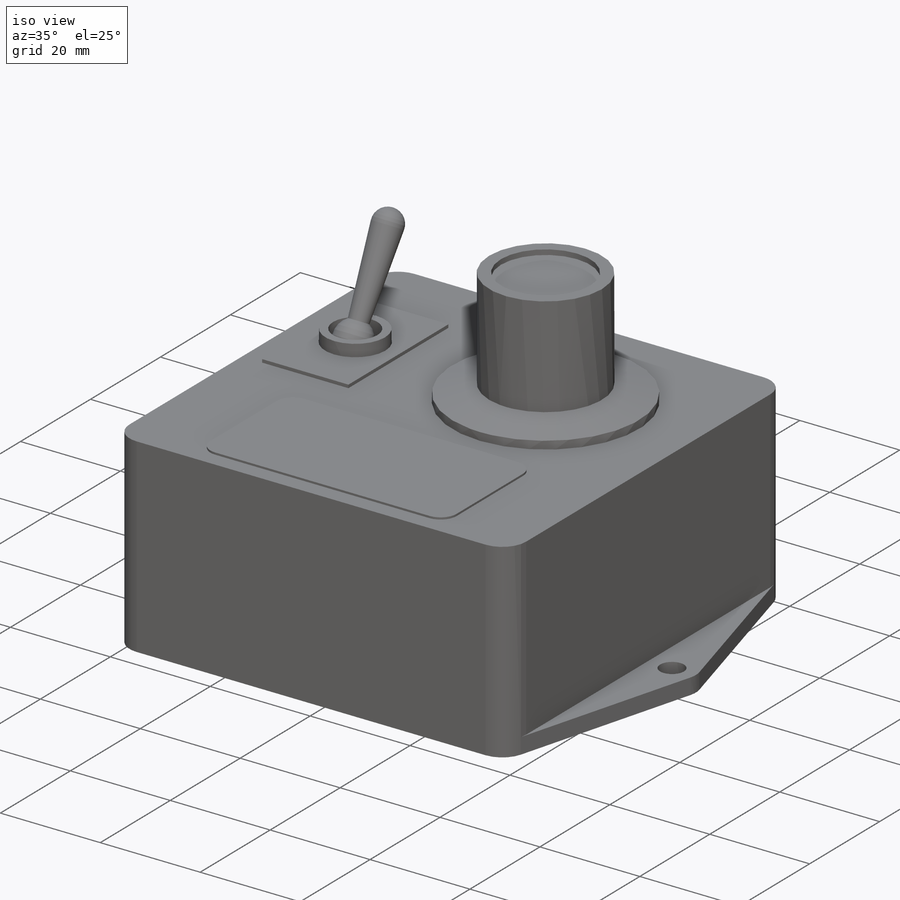
[diagram: iso view]
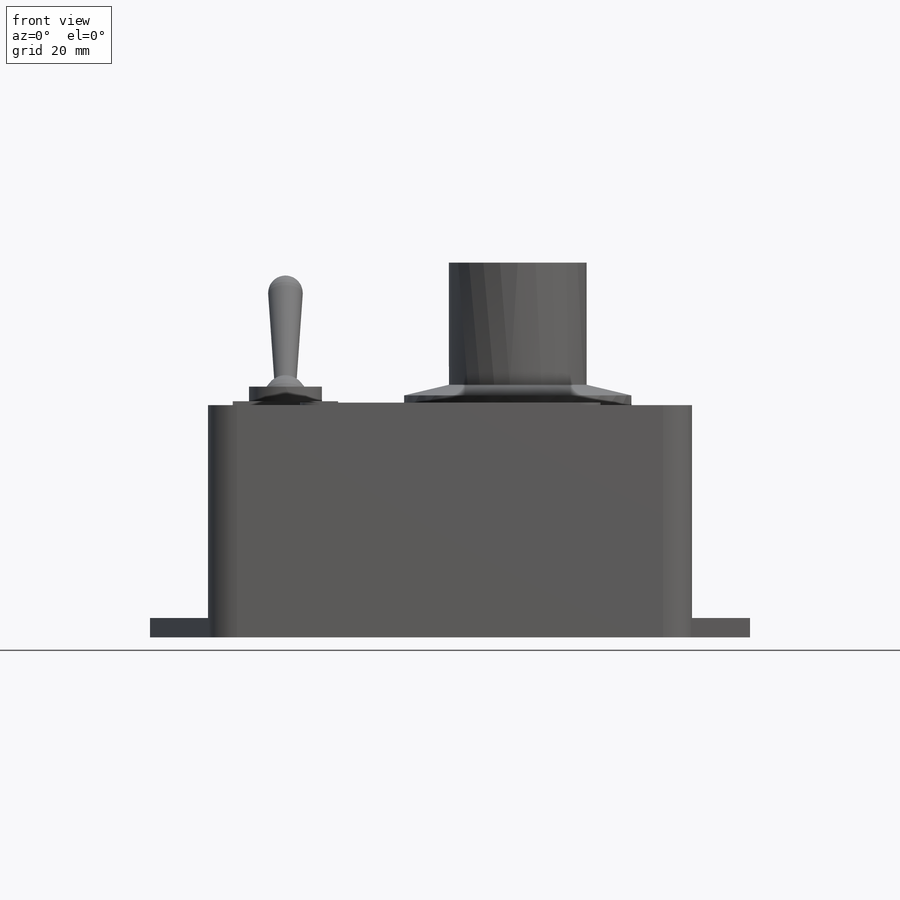
[diagram: front view]
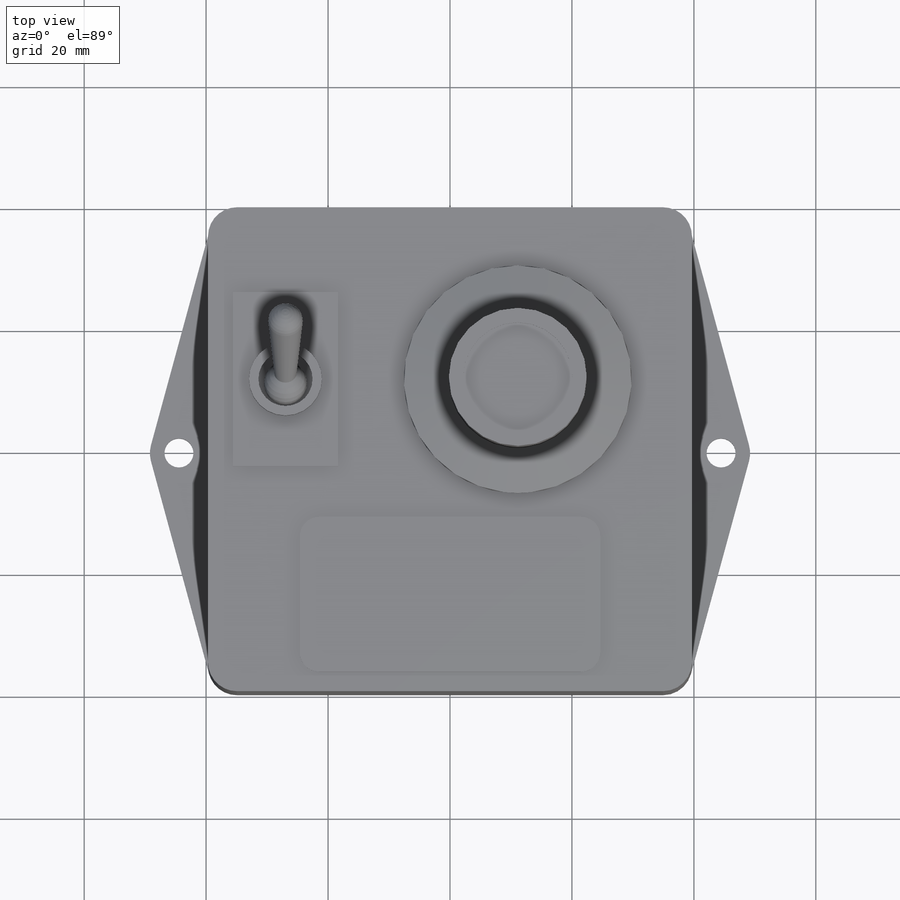
[diagram: top view]
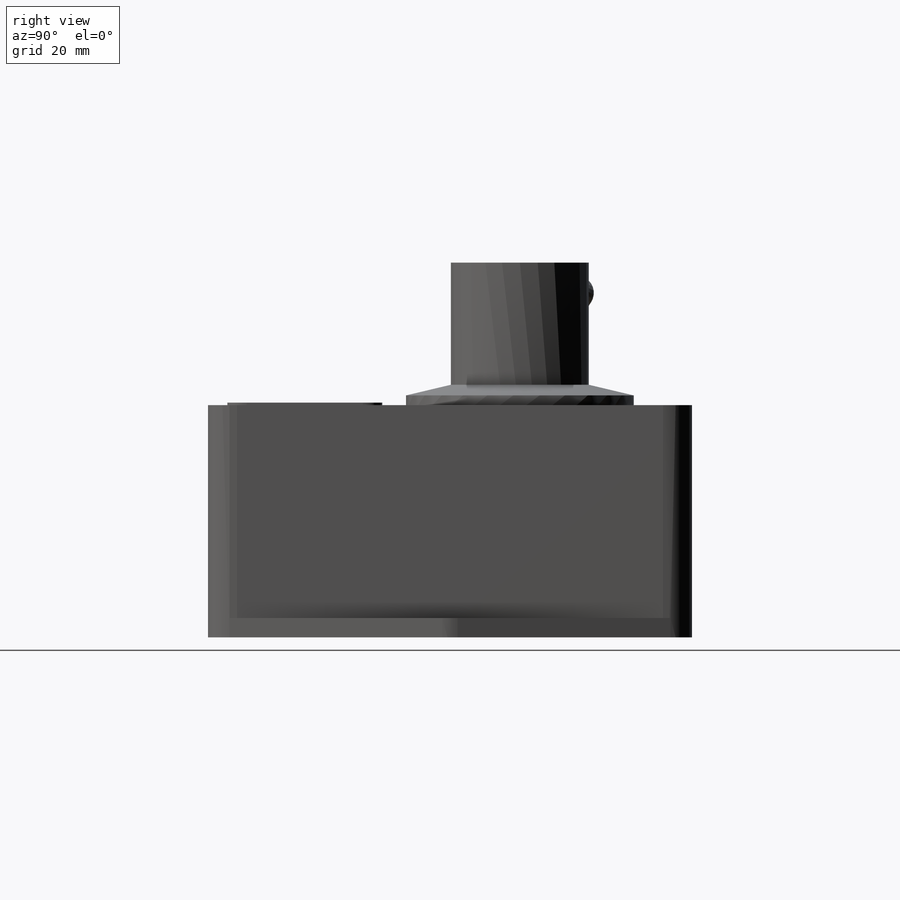
[diagram: right view]
SOLIDWORKS PART (.sldprt)
format: sldprt  version: not decoded by parser v0  size: 592,896 bytes
history: native  units: mm
features: sketch x8, extrude x4, revolve x3, plane x2, material x1, fillet x1 (+12 scaffold rows collapsed)
feature tree (31):
  scaffold x12  (default folders/planes/origin — collapsed)
  material  "Material <not specified>"
  sketch  "Sketch1"
  sketch  "param"  dims[D1=79.375mm D2=38.1mm]
  extrude  "Extrude1"  Depth=79.375mm
  fillet  "Fillet1"  Radius=4.7625mm
  sketch  "Sketch2"  dims[c1.D1=~6.378519mm c1.D2=4.7625mm c1.D3=4.7625mm c1.D4=4.7625mm c2.D1=44.45mm c2.D3=88.9mm]
  extrude  "Extrude2"  Depth=3.175mm
  sketch  "Sketch3"  dims[D4=3.175mm D1=49.276mm D2=25.4mm D3=3.175mm]
  extrude  "Extrude3"  Depth=0.396875mm
  sketch  "Sketch4"  dims[D3=12.065mm D1=17.272mm D2=28.575mm D4=11.4554mm D5=26.9875mm]
  extrude  "Extrude4"  Depth=0.635mm
  plane  "Plane1"  Offset=26.9875mm
  sketch  "Sketch5"  dims[c1.D2=3.81mm c1.D5=~12.342777mm c1.D6=~5.686289mm c1.D1=~31.376149mm c2.D1=~31.092879deg c3.D1=~49.305342mm c4.D1=30.0deg c4.D3=~3.655057mm c4.D4=~6.975582mm c4.D5=~16.649862mm c4.D7=16.8402mm c4.D8=0.9652mm]
  revolve  "Revolve1"  Angle=360deg
  sketch  "Sketch6"  dims[c1.D1=~12.891935mm c1.D2=~15.939935mm c1.D3=3.0226mm c2.D1=8.89mm c2.D2=11.938mm]
  revolve  "Revolve3"  Angle=360deg
  plane  "Plane2"  Offset=11.1125mm
  sketch  "Sketch7"  dims[D1=11.4554mm D2=1.5875mm D3=~3.33502mm D4=23.368mm D5=1.016mm D6=37.338mm D7=22.606mm D8=17.907mm]
  revolve  "Revolve4"  Angle=360deg
decode coverage: 15 of 16 modeling features carry decoded parameters
note: ~ marks probable driven/reference dimensions
note: suppression state not decoded; provenance and decode notes live in map.json
